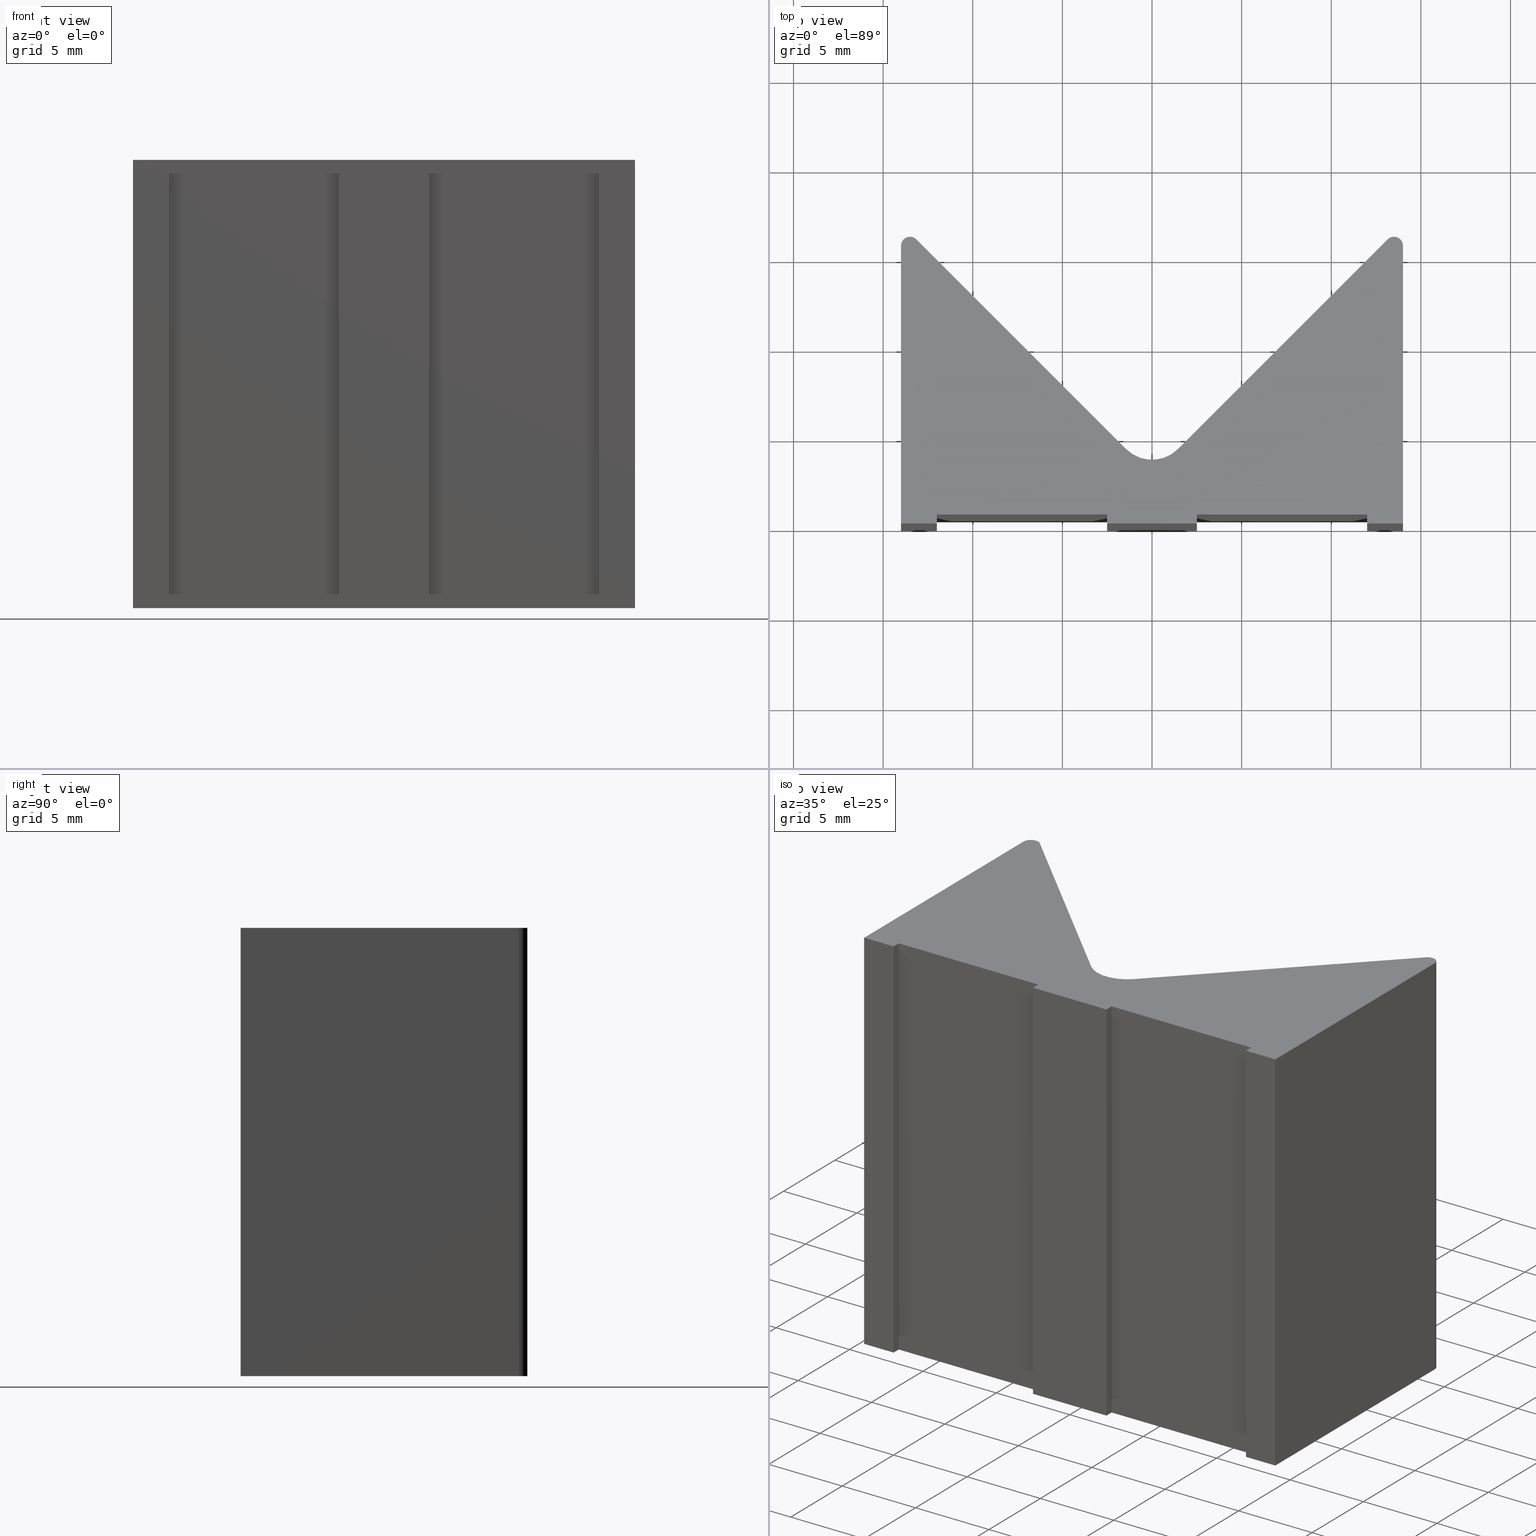
[diagram: canonical four-view strip — front | top / right | iso, engineering-drawing reading convention]
A machine part, canonical four-view strip (front | top / right | iso — engineering-drawing reading convention). The complete STEP part file that produces these views, byte-faithful:
ISO-10303-21;
HEADER;
/* Generated by software containing ST-Developer
 * from STEP Tools, Inc. (www.steptools.com) 
 */

FILE_DESCRIPTION(
/* description */ (''),
/* implementation_level */ '2;1');

FILE_NAME(
/* name */ 'E_3_01_10_18_00_WKZ-0133.stp',
/* time_stamp */ '2025-11-24T11:50:12+01:00',
/* author */ ('d.fischer'),
/* organization */ (''),
/* preprocessor_version */ 'ST-DEVELOPER v20',
/* originating_system */ 'Autodesk Inventor 2025',
/* authorisation */ '');

FILE_SCHEMA (('AUTOMOTIVE_DESIGN { 1 0 10303 214 3 1 1 }'));
ENDSEC;

DATA;
#10=MECHANICAL_DESIGN_GEOMETRIC_PRESENTATION_REPRESENTATION('',(#13),#594);
#11=SHAPE_REPRESENTATION_RELATIONSHIP('SRR','None',#601,#12);
#12=ADVANCED_BREP_SHAPE_REPRESENTATION('',(#14),#593);
#13=STYLED_ITEM('',(#610),#14);
#14=MANIFOLD_SOLID_BREP('Volumenk\X\F6rper1',#353);
#15=CYLINDRICAL_SURFACE('',#389,0.500000000000004);
#16=CYLINDRICAL_SURFACE('',#392,2.04558441227157);
#17=CYLINDRICAL_SURFACE('',#395,0.500000000000003);
#18=FACE_OUTER_BOUND('',#36,.T.);
#19=FACE_OUTER_BOUND('',#37,.T.);
#20=FACE_OUTER_BOUND('',#38,.T.);
#21=FACE_OUTER_BOUND('',#39,.T.);
#22=FACE_OUTER_BOUND('',#40,.T.);
#23=FACE_OUTER_BOUND('',#41,.T.);
#24=FACE_OUTER_BOUND('',#42,.T.);
#25=FACE_OUTER_BOUND('',#43,.T.);
#26=FACE_OUTER_BOUND('',#44,.T.);
#27=FACE_OUTER_BOUND('',#45,.T.);
#28=FACE_OUTER_BOUND('',#46,.T.);
#29=FACE_OUTER_BOUND('',#47,.T.);
#30=FACE_OUTER_BOUND('',#48,.T.);
#31=FACE_OUTER_BOUND('',#49,.T.);
#32=FACE_OUTER_BOUND('',#50,.T.);
#33=FACE_OUTER_BOUND('',#51,.T.);
#34=FACE_OUTER_BOUND('',#52,.T.);
#35=FACE_OUTER_BOUND('',#53,.T.);
#36=EDGE_LOOP('',(#224,#225,#226,#227,#228,#229,#230,#231,#232,#233,#234,
#235,#236,#237,#238,#239));
#37=EDGE_LOOP('',(#240,#241,#242,#243));
#38=EDGE_LOOP('',(#244,#245,#246,#247));
#39=EDGE_LOOP('',(#248,#249,#250,#251));
#40=EDGE_LOOP('',(#252,#253,#254,#255));
#41=EDGE_LOOP('',(#256,#257,#258,#259));
#42=EDGE_LOOP('',(#260,#261,#262,#263));
#43=EDGE_LOOP('',(#264,#265,#266,#267));
#44=EDGE_LOOP('',(#268,#269,#270,#271));
#45=EDGE_LOOP('',(#272,#273,#274,#275));
#46=EDGE_LOOP('',(#276,#277,#278,#279));
#47=EDGE_LOOP('',(#280,#281,#282,#283));
#48=EDGE_LOOP('',(#284,#285,#286,#287));
#49=EDGE_LOOP('',(#288,#289,#290,#291));
#50=EDGE_LOOP('',(#292,#293,#294,#295));
#51=EDGE_LOOP('',(#296,#297,#298,#299));
#52=EDGE_LOOP('',(#300,#301,#302,#303));
#53=EDGE_LOOP('',(#304,#305,#306,#307,#308,#309,#310,#311,#312,#313,#314,
#315,#316,#317,#318,#319));
#54=CIRCLE('',#377,0.500000000000004);
#55=CIRCLE('',#378,2.04558441227157);
#56=CIRCLE('',#379,0.500000000000003);
#57=CIRCLE('',#390,0.500000000000004);
#58=CIRCLE('',#393,2.04558441227157);
#59=CIRCLE('',#396,0.500000000000003);
#60=LINE('',#496,#102);
#61=LINE('',#498,#103);
#62=LINE('',#500,#104);
#63=LINE('',#502,#105);
#64=LINE('',#504,#106);
#65=LINE('',#506,#107);
#66=LINE('',#508,#108);
#67=LINE('',#510,#109);
#68=LINE('',#512,#110);
#69=LINE('',#514,#111);
#70=LINE('',#516,#112);
#71=LINE('',#520,#113);
#72=LINE('',#524,#114);
#73=LINE('',#529,#115);
#74=LINE('',#530,#116);
#75=LINE('',#531,#117);
#76=LINE('',#534,#118);
#77=LINE('',#535,#119);
#78=LINE('',#538,#120);
#79=LINE('',#539,#121);
#80=LINE('',#542,#122);
#81=LINE('',#543,#123);
#82=LINE('',#546,#124);
#83=LINE('',#547,#125);
#84=LINE('',#550,#126);
#85=LINE('',#551,#127);
#86=LINE('',#554,#128);
#87=LINE('',#555,#129);
#88=LINE('',#558,#130);
#89=LINE('',#559,#131);
#90=LINE('',#562,#132);
#91=LINE('',#563,#133);
#92=LINE('',#567,#134);
#93=LINE('',#570,#135);
#94=LINE('',#571,#136);
#95=LINE('',#575,#137);
#96=LINE('',#578,#138);
#97=LINE('',#579,#139);
#98=LINE('',#583,#140);
#99=LINE('',#586,#141);
#100=LINE('',#587,#142);
#101=LINE('',#589,#143);
#102=VECTOR('',#404,10.);
#103=VECTOR('',#405,10.);
#104=VECTOR('',#406,10.);
#105=VECTOR('',#407,10.);
#106=VECTOR('',#408,10.);
#107=VECTOR('',#409,10.);
#108=VECTOR('',#410,10.);
#109=VECTOR('',#411,10.);
#110=VECTOR('',#412,10.);
#111=VECTOR('',#413,10.);
#112=VECTOR('',#414,10.);
#113=VECTOR('',#417,10.);
#114=VECTOR('',#420,10.);
#115=VECTOR('',#425,10.);
#116=VECTOR('',#426,10.);
#117=VECTOR('',#427,10.);
#118=VECTOR('',#430,10.);
#119=VECTOR('',#431,10.);
#120=VECTOR('',#434,10.);
#121=VECTOR('',#435,10.);
#122=VECTOR('',#438,10.);
#123=VECTOR('',#439,10.);
#124=VECTOR('',#442,10.);
#125=VECTOR('',#443,10.);
#126=VECTOR('',#446,10.);
#127=VECTOR('',#447,10.);
#128=VECTOR('',#450,10.);
#129=VECTOR('',#451,10.);
#130=VECTOR('',#454,10.);
#131=VECTOR('',#455,10.);
#132=VECTOR('',#458,10.);
#133=VECTOR('',#459,10.);
#134=VECTOR('',#464,10.);
#135=VECTOR('',#467,10.);
#136=VECTOR('',#468,10.);
#137=VECTOR('',#473,10.);
#138=VECTOR('',#476,10.);
#139=VECTOR('',#477,10.);
#140=VECTOR('',#482,10.);
#141=VECTOR('',#485,10.);
#142=VECTOR('',#486,10.);
#143=VECTOR('',#489,10.);
#144=VERTEX_POINT('',#494);
#145=VERTEX_POINT('',#495);
#146=VERTEX_POINT('',#497);
#147=VERTEX_POINT('',#499);
#148=VERTEX_POINT('',#501);
#149=VERTEX_POINT('',#503);
#150=VERTEX_POINT('',#505);
#151=VERTEX_POINT('',#507);
#152=VERTEX_POINT('',#509);
#153=VERTEX_POINT('',#511);
#154=VERTEX_POINT('',#513);
#155=VERTEX_POINT('',#515);
#156=VERTEX_POINT('',#517);
#157=VERTEX_POINT('',#519);
#158=VERTEX_POINT('',#521);
#159=VERTEX_POINT('',#523);
#160=VERTEX_POINT('',#527);
#161=VERTEX_POINT('',#528);
#162=VERTEX_POINT('',#533);
#163=VERTEX_POINT('',#537);
#164=VERTEX_POINT('',#541);
#165=VERTEX_POINT('',#545);
#166=VERTEX_POINT('',#549);
#167=VERTEX_POINT('',#553);
#168=VERTEX_POINT('',#557);
#169=VERTEX_POINT('',#561);
#170=VERTEX_POINT('',#565);
#171=VERTEX_POINT('',#569);
#172=VERTEX_POINT('',#573);
#173=VERTEX_POINT('',#577);
#174=VERTEX_POINT('',#581);
#175=VERTEX_POINT('',#585);
#176=EDGE_CURVE('',#144,#145,#60,.T.);
#177=EDGE_CURVE('',#146,#144,#61,.T.);
#178=EDGE_CURVE('',#147,#146,#62,.T.);
#179=EDGE_CURVE('',#148,#147,#63,.T.);
#180=EDGE_CURVE('',#149,#148,#64,.T.);
#181=EDGE_CURVE('',#150,#149,#65,.T.);
#182=EDGE_CURVE('',#151,#150,#66,.T.);
#183=EDGE_CURVE('',#152,#151,#67,.T.);
#184=EDGE_CURVE('',#153,#152,#68,.T.);
#185=EDGE_CURVE('',#154,#153,#69,.T.);
#186=EDGE_CURVE('',#155,#154,#70,.T.);
#187=EDGE_CURVE('',#156,#155,#54,.T.);
#188=EDGE_CURVE('',#157,#156,#71,.T.);
#189=EDGE_CURVE('',#158,#157,#55,.T.);
#190=EDGE_CURVE('',#159,#158,#72,.T.);
#191=EDGE_CURVE('',#145,#159,#56,.T.);
#192=EDGE_CURVE('',#160,#161,#73,.T.);
#193=EDGE_CURVE('',#161,#147,#74,.T.);
#194=EDGE_CURVE('',#160,#146,#75,.T.);
#195=EDGE_CURVE('',#161,#162,#76,.T.);
#196=EDGE_CURVE('',#162,#148,#77,.T.);
#197=EDGE_CURVE('',#162,#163,#78,.T.);
#198=EDGE_CURVE('',#163,#149,#79,.T.);
#199=EDGE_CURVE('',#163,#164,#80,.T.);
#200=EDGE_CURVE('',#164,#150,#81,.T.);
#201=EDGE_CURVE('',#164,#165,#82,.T.);
#202=EDGE_CURVE('',#165,#151,#83,.T.);
#203=EDGE_CURVE('',#165,#166,#84,.T.);
#204=EDGE_CURVE('',#166,#152,#85,.T.);
#205=EDGE_CURVE('',#166,#167,#86,.T.);
#206=EDGE_CURVE('',#167,#153,#87,.T.);
#207=EDGE_CURVE('',#167,#168,#88,.T.);
#208=EDGE_CURVE('',#168,#154,#89,.T.);
#209=EDGE_CURVE('',#168,#169,#90,.T.);
#210=EDGE_CURVE('',#169,#155,#91,.T.);
#211=EDGE_CURVE('',#169,#170,#57,.T.);
#212=EDGE_CURVE('',#170,#156,#92,.T.);
#213=EDGE_CURVE('',#170,#171,#93,.T.);
#214=EDGE_CURVE('',#171,#157,#94,.T.);
#215=EDGE_CURVE('',#171,#172,#58,.T.);
#216=EDGE_CURVE('',#172,#158,#95,.T.);
#217=EDGE_CURVE('',#172,#173,#96,.T.);
#218=EDGE_CURVE('',#173,#159,#97,.T.);
#219=EDGE_CURVE('',#173,#174,#59,.T.);
#220=EDGE_CURVE('',#174,#145,#98,.T.);
#221=EDGE_CURVE('',#174,#175,#99,.T.);
#222=EDGE_CURVE('',#144,#175,#100,.T.);
#223=EDGE_CURVE('',#175,#160,#101,.T.);
#224=ORIENTED_EDGE('',*,*,#176,.F.);
#225=ORIENTED_EDGE('',*,*,#177,.F.);
#226=ORIENTED_EDGE('',*,*,#178,.F.);
#227=ORIENTED_EDGE('',*,*,#179,.F.);
#228=ORIENTED_EDGE('',*,*,#180,.F.);
#229=ORIENTED_EDGE('',*,*,#181,.F.);
#230=ORIENTED_EDGE('',*,*,#182,.F.);
#231=ORIENTED_EDGE('',*,*,#183,.F.);
#232=ORIENTED_EDGE('',*,*,#184,.F.);
#233=ORIENTED_EDGE('',*,*,#185,.F.);
#234=ORIENTED_EDGE('',*,*,#186,.F.);
#235=ORIENTED_EDGE('',*,*,#187,.F.);
#236=ORIENTED_EDGE('',*,*,#188,.F.);
#237=ORIENTED_EDGE('',*,*,#189,.F.);
#238=ORIENTED_EDGE('',*,*,#190,.F.);
#239=ORIENTED_EDGE('',*,*,#191,.F.);
#240=ORIENTED_EDGE('',*,*,#192,.T.);
#241=ORIENTED_EDGE('',*,*,#193,.T.);
#242=ORIENTED_EDGE('',*,*,#178,.T.);
#243=ORIENTED_EDGE('',*,*,#194,.F.);
#244=ORIENTED_EDGE('',*,*,#195,.T.);
#245=ORIENTED_EDGE('',*,*,#196,.T.);
#246=ORIENTED_EDGE('',*,*,#179,.T.);
#247=ORIENTED_EDGE('',*,*,#193,.F.);
#248=ORIENTED_EDGE('',*,*,#197,.T.);
#249=ORIENTED_EDGE('',*,*,#198,.T.);
#250=ORIENTED_EDGE('',*,*,#180,.T.);
#251=ORIENTED_EDGE('',*,*,#196,.F.);
#252=ORIENTED_EDGE('',*,*,#199,.T.);
#253=ORIENTED_EDGE('',*,*,#200,.T.);
#254=ORIENTED_EDGE('',*,*,#181,.T.);
#255=ORIENTED_EDGE('',*,*,#198,.F.);
#256=ORIENTED_EDGE('',*,*,#201,.T.);
#257=ORIENTED_EDGE('',*,*,#202,.T.);
#258=ORIENTED_EDGE('',*,*,#182,.T.);
#259=ORIENTED_EDGE('',*,*,#200,.F.);
#260=ORIENTED_EDGE('',*,*,#203,.T.);
#261=ORIENTED_EDGE('',*,*,#204,.T.);
#262=ORIENTED_EDGE('',*,*,#183,.T.);
#263=ORIENTED_EDGE('',*,*,#202,.F.);
#264=ORIENTED_EDGE('',*,*,#205,.T.);
#265=ORIENTED_EDGE('',*,*,#206,.T.);
#266=ORIENTED_EDGE('',*,*,#184,.T.);
#267=ORIENTED_EDGE('',*,*,#204,.F.);
#268=ORIENTED_EDGE('',*,*,#207,.T.);
#269=ORIENTED_EDGE('',*,*,#208,.T.);
#270=ORIENTED_EDGE('',*,*,#185,.T.);
#271=ORIENTED_EDGE('',*,*,#206,.F.);
#272=ORIENTED_EDGE('',*,*,#209,.T.);
#273=ORIENTED_EDGE('',*,*,#210,.T.);
#274=ORIENTED_EDGE('',*,*,#186,.T.);
#275=ORIENTED_EDGE('',*,*,#208,.F.);
#276=ORIENTED_EDGE('',*,*,#211,.T.);
#277=ORIENTED_EDGE('',*,*,#212,.T.);
#278=ORIENTED_EDGE('',*,*,#187,.T.);
#279=ORIENTED_EDGE('',*,*,#210,.F.);
#280=ORIENTED_EDGE('',*,*,#213,.T.);
#281=ORIENTED_EDGE('',*,*,#214,.T.);
#282=ORIENTED_EDGE('',*,*,#188,.T.);
#283=ORIENTED_EDGE('',*,*,#212,.F.);
#284=ORIENTED_EDGE('',*,*,#215,.T.);
#285=ORIENTED_EDGE('',*,*,#216,.T.);
#286=ORIENTED_EDGE('',*,*,#189,.T.);
#287=ORIENTED_EDGE('',*,*,#214,.F.);
#288=ORIENTED_EDGE('',*,*,#217,.T.);
#289=ORIENTED_EDGE('',*,*,#218,.T.);
#290=ORIENTED_EDGE('',*,*,#190,.T.);
#291=ORIENTED_EDGE('',*,*,#216,.F.);
#292=ORIENTED_EDGE('',*,*,#219,.T.);
#293=ORIENTED_EDGE('',*,*,#220,.T.);
#294=ORIENTED_EDGE('',*,*,#191,.T.);
#295=ORIENTED_EDGE('',*,*,#218,.F.);
#296=ORIENTED_EDGE('',*,*,#221,.T.);
#297=ORIENTED_EDGE('',*,*,#222,.F.);
#298=ORIENTED_EDGE('',*,*,#176,.T.);
#299=ORIENTED_EDGE('',*,*,#220,.F.);
#300=ORIENTED_EDGE('',*,*,#223,.T.);
#301=ORIENTED_EDGE('',*,*,#194,.T.);
#302=ORIENTED_EDGE('',*,*,#177,.T.);
#303=ORIENTED_EDGE('',*,*,#222,.T.);
#304=ORIENTED_EDGE('',*,*,#192,.F.);
#305=ORIENTED_EDGE('',*,*,#223,.F.);
#306=ORIENTED_EDGE('',*,*,#221,.F.);
#307=ORIENTED_EDGE('',*,*,#219,.F.);
#308=ORIENTED_EDGE('',*,*,#217,.F.);
#309=ORIENTED_EDGE('',*,*,#215,.F.);
#310=ORIENTED_EDGE('',*,*,#213,.F.);
#311=ORIENTED_EDGE('',*,*,#211,.F.);
#312=ORIENTED_EDGE('',*,*,#209,.F.);
#313=ORIENTED_EDGE('',*,*,#207,.F.);
#314=ORIENTED_EDGE('',*,*,#205,.F.);
#315=ORIENTED_EDGE('',*,*,#203,.F.);
#316=ORIENTED_EDGE('',*,*,#201,.F.);
#317=ORIENTED_EDGE('',*,*,#199,.F.);
#318=ORIENTED_EDGE('',*,*,#197,.F.);
#319=ORIENTED_EDGE('',*,*,#195,.F.);
#320=PLANE('',#376);
#321=PLANE('',#380);
#322=PLANE('',#381);
#323=PLANE('',#382);
#324=PLANE('',#383);
#325=PLANE('',#384);
#326=PLANE('',#385);
#327=PLANE('',#386);
#328=PLANE('',#387);
#329=PLANE('',#388);
#330=PLANE('',#391);
#331=PLANE('',#394);
#332=PLANE('',#397);
#333=PLANE('',#398);
#334=PLANE('',#399);
#335=ADVANCED_FACE('',(#18),#320,.F.);
#336=ADVANCED_FACE('',(#19),#321,.T.);
#337=ADVANCED_FACE('',(#20),#322,.T.);
#338=ADVANCED_FACE('',(#21),#323,.T.);
#339=ADVANCED_FACE('',(#22),#324,.T.);
#340=ADVANCED_FACE('',(#23),#325,.T.);
#341=ADVANCED_FACE('',(#24),#326,.T.);
#342=ADVANCED_FACE('',(#25),#327,.T.);
#343=ADVANCED_FACE('',(#26),#328,.T.);
#344=ADVANCED_FACE('',(#27),#329,.T.);
#345=ADVANCED_FACE('',(#28),#15,.T.);
#346=ADVANCED_FACE('',(#29),#330,.T.);
#347=ADVANCED_FACE('',(#30),#16,.F.);
#348=ADVANCED_FACE('',(#31),#331,.T.);
#349=ADVANCED_FACE('',(#32),#17,.T.);
#350=ADVANCED_FACE('',(#33),#332,.T.);
#351=ADVANCED_FACE('',(#34),#333,.T.);
#352=ADVANCED_FACE('',(#35),#334,.T.);
#353=CLOSED_SHELL('',(#335,#336,#337,#338,#339,#340,#341,#342,#343,#344,
#345,#346,#347,#348,#349,#350,#351,#352));
#354=DERIVED_UNIT_ELEMENT(#357,1.);
#355=DERIVED_UNIT_ELEMENT(#596,-3.);
#356=DIMENSIONAL_EXPONENTS(0.,1.,0.,0.,0.,0.,0.);
#357=(
CONVERSION_BASED_UNIT('gram',#359)
MASS_UNIT()
NAMED_UNIT(#356)
);
#358=(
MASS_UNIT()
NAMED_UNIT(*)
SI_UNIT(.KILO.,.GRAM.)
);
#359=MASS_MEASURE_WITH_UNIT(MASS_MEASURE(0.001),#358);
#360=DERIVED_UNIT((#354,#355));
#361=MEASURE_REPRESENTATION_ITEM('density measure',
POSITIVE_RATIO_MEASURE(8.03),#360);
#362=PROPERTY_DEFINITION_REPRESENTATION(#367,#364);
#363=PROPERTY_DEFINITION_REPRESENTATION(#368,#365);
#364=REPRESENTATION('material name',(#366),#593);
#365=REPRESENTATION('density',(#361),#593);
#366=DESCRIPTIVE_REPRESENTATION_ITEM('1.4301','1.4301');
#367=PROPERTY_DEFINITION('material property','material name',#603);
#368=PROPERTY_DEFINITION('material property','density of part',#603);
#369=DATE_TIME_ROLE('creation_date');
#370=APPLIED_DATE_AND_TIME_ASSIGNMENT(#371,#369,(#603));
#371=DATE_AND_TIME(#372,#373);
#372=CALENDAR_DATE(2011,18,10);
#373=LOCAL_TIME(0,0,0.,#374);
#374=COORDINATED_UNIVERSAL_TIME_OFFSET(0,0,.BEHIND.);
#375=AXIS2_PLACEMENT_3D('',#492,#400,#401);
#376=AXIS2_PLACEMENT_3D('',#493,#402,#403);
#377=AXIS2_PLACEMENT_3D('',#518,#415,#416);
#378=AXIS2_PLACEMENT_3D('',#522,#418,#419);
#379=AXIS2_PLACEMENT_3D('',#525,#421,#422);
#380=AXIS2_PLACEMENT_3D('',#526,#423,#424);
#381=AXIS2_PLACEMENT_3D('',#532,#428,#429);
#382=AXIS2_PLACEMENT_3D('',#536,#432,#433);
#383=AXIS2_PLACEMENT_3D('',#540,#436,#437);
#384=AXIS2_PLACEMENT_3D('',#544,#440,#441);
#385=AXIS2_PLACEMENT_3D('',#548,#444,#445);
#386=AXIS2_PLACEMENT_3D('',#552,#448,#449);
#387=AXIS2_PLACEMENT_3D('',#556,#452,#453);
#388=AXIS2_PLACEMENT_3D('',#560,#456,#457);
#389=AXIS2_PLACEMENT_3D('',#564,#460,#461);
#390=AXIS2_PLACEMENT_3D('',#566,#462,#463);
#391=AXIS2_PLACEMENT_3D('',#568,#465,#466);
#392=AXIS2_PLACEMENT_3D('',#572,#469,#470);
#393=AXIS2_PLACEMENT_3D('',#574,#471,#472);
#394=AXIS2_PLACEMENT_3D('',#576,#474,#475);
#395=AXIS2_PLACEMENT_3D('',#580,#478,#479);
#396=AXIS2_PLACEMENT_3D('',#582,#480,#481);
#397=AXIS2_PLACEMENT_3D('',#584,#483,#484);
#398=AXIS2_PLACEMENT_3D('',#588,#487,#488);
#399=AXIS2_PLACEMENT_3D('',#590,#490,#491);
#400=DIRECTION('axis',(0.,0.,1.));
#401=DIRECTION('refdir',(1.,0.,0.));
#402=DIRECTION('center_axis',(0.,0.,1.));
#403=DIRECTION('ref_axis',(1.,0.,0.));
#404=DIRECTION('',(2.86509167645202E-16,1.,0.));
#405=DIRECTION('',(1.,0.,0.));
#406=DIRECTION('',(0.,-1.,0.));
#407=DIRECTION('',(1.,-9.49532850008358E-17,0.));
#408=DIRECTION('',(0.,1.,0.));
#409=DIRECTION('',(1.,0.,0.));
#410=DIRECTION('',(0.,-1.,0.));
#411=DIRECTION('',(1.,9.49532850008358E-17,0.));
#412=DIRECTION('',(0.,1.,0.));
#413=DIRECTION('',(1.,0.,0.));
#414=DIRECTION('',(2.86509167645202E-16,-1.,0.));
#415=DIRECTION('center_axis',(0.,0.,1.));
#416=DIRECTION('ref_axis',(-0.707106781186547,-0.707106781186547,0.));
#417=DIRECTION('',(-0.707106781186548,0.707106781186547,0.));
#418=DIRECTION('center_axis',(0.,0.,-1.));
#419=DIRECTION('ref_axis',(-0.707106781186547,-0.707106781186548,0.));
#420=DIRECTION('',(-0.707106781186548,-0.707106781186547,0.));
#421=DIRECTION('center_axis',(0.,0.,1.));
#422=DIRECTION('ref_axis',(-1.,0.,0.));
#423=DIRECTION('center_axis',(-1.,0.,0.));
#424=DIRECTION('ref_axis',(0.,0.,1.));
#425=DIRECTION('',(0.,1.,0.));
#426=DIRECTION('',(0.,0.,-1.));
#427=DIRECTION('',(0.,0.,-1.));
#428=DIRECTION('center_axis',(-9.49532850008358E-17,-1.,0.));
#429=DIRECTION('ref_axis',(0.,0.,-1.));
#430=DIRECTION('',(-1.,9.49532850008358E-17,0.));
#431=DIRECTION('',(0.,0.,-1.));
#432=DIRECTION('center_axis',(1.,0.,0.));
#433=DIRECTION('ref_axis',(0.,0.,-1.));
#434=DIRECTION('',(0.,-1.,0.));
#435=DIRECTION('',(0.,0.,-1.));
#436=DIRECTION('center_axis',(0.,-1.,0.));
#437=DIRECTION('ref_axis',(0.,0.,-1.));
#438=DIRECTION('',(-1.,0.,0.));
#439=DIRECTION('',(0.,0.,-1.));
#440=DIRECTION('center_axis',(-1.,0.,0.));
#441=DIRECTION('ref_axis',(0.,0.,1.));
#442=DIRECTION('',(0.,1.,0.));
#443=DIRECTION('',(0.,0.,-1.));
#444=DIRECTION('center_axis',(9.49532850008358E-17,-1.,0.));
#445=DIRECTION('ref_axis',(0.,0.,-1.));
#446=DIRECTION('',(-1.,-9.49532850008358E-17,0.));
#447=DIRECTION('',(0.,0.,-1.));
#448=DIRECTION('center_axis',(1.,0.,0.));
#449=DIRECTION('ref_axis',(0.,0.,-1.));
#450=DIRECTION('',(0.,-1.,0.));
#451=DIRECTION('',(0.,0.,-1.));
#452=DIRECTION('center_axis',(0.,-1.,0.));
#453=DIRECTION('ref_axis',(0.,0.,-1.));
#454=DIRECTION('',(-1.,0.,0.));
#455=DIRECTION('',(0.,0.,-1.));
#456=DIRECTION('center_axis',(-1.,-2.86509167645202E-16,0.));
#457=DIRECTION('ref_axis',(0.,0.,1.));
#458=DIRECTION('',(-2.86509167645202E-16,1.,0.));
#459=DIRECTION('',(0.,0.,-1.));
#460=DIRECTION('center_axis',(0.,0.,1.));
#461=DIRECTION('ref_axis',(-0.707106781186547,-0.707106781186547,0.));
#462=DIRECTION('center_axis',(0.,0.,-1.));
#463=DIRECTION('ref_axis',(-0.707106781186547,-0.707106781186547,0.));
#464=DIRECTION('',(0.,0.,-1.));
#465=DIRECTION('center_axis',(0.707106781186547,0.707106781186548,0.));
#466=DIRECTION('ref_axis',(0.,0.,-1.));
#467=DIRECTION('',(0.707106781186548,-0.707106781186547,0.));
#468=DIRECTION('',(0.,0.,-1.));
#469=DIRECTION('center_axis',(0.,0.,1.));
#470=DIRECTION('ref_axis',(-0.707106781186547,-0.707106781186548,0.));
#471=DIRECTION('center_axis',(0.,0.,1.));
#472=DIRECTION('ref_axis',(-0.707106781186547,-0.707106781186548,0.));
#473=DIRECTION('',(0.,0.,-1.));
#474=DIRECTION('center_axis',(-0.707106781186547,0.707106781186548,0.));
#475=DIRECTION('ref_axis',(0.,0.,1.));
#476=DIRECTION('',(0.707106781186548,0.707106781186547,0.));
#477=DIRECTION('',(0.,0.,-1.));
#478=DIRECTION('center_axis',(0.,0.,1.));
#479=DIRECTION('ref_axis',(-1.,0.,0.));
#480=DIRECTION('center_axis',(0.,0.,-1.));
#481=DIRECTION('ref_axis',(-1.,0.,0.));
#482=DIRECTION('',(0.,0.,-1.));
#483=DIRECTION('center_axis',(1.,-2.86509167645202E-16,0.));
#484=DIRECTION('ref_axis',(0.,0.,-1.));
#485=DIRECTION('',(-2.86509167645202E-16,-1.,0.));
#486=DIRECTION('',(0.,0.,1.));
#487=DIRECTION('center_axis',(0.,-1.,0.));
#488=DIRECTION('ref_axis',(0.,0.,-1.));
#489=DIRECTION('',(-1.,0.,0.));
#490=DIRECTION('center_axis',(0.,0.,1.));
#491=DIRECTION('ref_axis',(1.,0.,0.));
#492=CARTESIAN_POINT('',(0.,0.,0.));
#493=CARTESIAN_POINT('Origin',(-2.77555756156289E-16,6.32967069798019,-12.5));
#494=CARTESIAN_POINT('',(14.,0.,-12.5));
#495=CARTESIAN_POINT('',(14.,15.5,-12.5));
#496=CARTESIAN_POINT('',(14.,15.5,-12.5));
#497=CARTESIAN_POINT('',(12.,0.,-12.5));
#498=CARTESIAN_POINT('',(14.,0.,-12.5));
#499=CARTESIAN_POINT('',(12.,0.5,-12.5));
#500=CARTESIAN_POINT('',(12.,0.,-12.5));
#501=CARTESIAN_POINT('',(2.5,0.500000000000001,-12.5));
#502=CARTESIAN_POINT('',(12.,0.5,-12.5));
#503=CARTESIAN_POINT('',(2.5,0.,-12.5));
#504=CARTESIAN_POINT('',(2.5,0.500000000000001,-12.5));
#505=CARTESIAN_POINT('',(-2.5,0.,-12.5));
#506=CARTESIAN_POINT('',(2.5,0.,-12.5));
#507=CARTESIAN_POINT('',(-2.5,0.500000000000001,-12.5));
#508=CARTESIAN_POINT('',(-2.5,0.,-12.5));
#509=CARTESIAN_POINT('',(-12.,0.5,-12.5));
#510=CARTESIAN_POINT('',(-2.5,0.500000000000001,-12.5));
#511=CARTESIAN_POINT('',(-12.,0.,-12.5));
#512=CARTESIAN_POINT('',(-12.,0.5,-12.5));
#513=CARTESIAN_POINT('',(-14.,0.,-12.5));
#514=CARTESIAN_POINT('',(-12.,0.,-12.5));
#515=CARTESIAN_POINT('',(-14.,15.5,-12.5));
#516=CARTESIAN_POINT('',(-14.,0.,-12.5));
#517=CARTESIAN_POINT('',(-13.1464466094067,15.8535533905933,-12.5));
#518=CARTESIAN_POINT('Origin',(-13.5,15.5,-12.5));
#519=CARTESIAN_POINT('',(-1.44644660940672,4.15355339059328,-12.5));
#520=CARTESIAN_POINT('',(-13.1464466094067,15.8535533905933,-12.5));
#521=CARTESIAN_POINT('',(1.44644660940672,4.15355339059328,-12.5));
#522=CARTESIAN_POINT('Origin',(0.,5.6,-12.5));
#523=CARTESIAN_POINT('',(13.1464466094067,15.8535533905933,-12.5));
#524=CARTESIAN_POINT('',(1.44644660940672,4.15355339059328,-12.5));
#525=CARTESIAN_POINT('Origin',(13.5,15.5,-12.5));
#526=CARTESIAN_POINT('Origin',(12.,0.,0.));
#527=CARTESIAN_POINT('',(12.,0.,12.5));
#528=CARTESIAN_POINT('',(12.,0.5,12.5));
#529=CARTESIAN_POINT('',(12.,0.,12.5));
#530=CARTESIAN_POINT('',(12.,0.5,0.));
#531=CARTESIAN_POINT('',(12.,0.,0.));
#532=CARTESIAN_POINT('Origin',(12.,0.5,0.));
#533=CARTESIAN_POINT('',(2.5,0.500000000000001,12.5));
#534=CARTESIAN_POINT('',(12.,0.5,12.5));
#535=CARTESIAN_POINT('',(2.5,0.500000000000001,0.));
#536=CARTESIAN_POINT('Origin',(2.5,0.500000000000001,0.));
#537=CARTESIAN_POINT('',(2.5,0.,12.5));
#538=CARTESIAN_POINT('',(2.5,0.500000000000001,12.5));
#539=CARTESIAN_POINT('',(2.5,0.,0.));
#540=CARTESIAN_POINT('Origin',(2.5,0.,0.));
#541=CARTESIAN_POINT('',(-2.5,0.,12.5));
#542=CARTESIAN_POINT('',(2.5,0.,12.5));
#543=CARTESIAN_POINT('',(-2.5,0.,0.));
#544=CARTESIAN_POINT('Origin',(-2.5,0.,0.));
#545=CARTESIAN_POINT('',(-2.5,0.500000000000001,12.5));
#546=CARTESIAN_POINT('',(-2.5,0.,12.5));
#547=CARTESIAN_POINT('',(-2.5,0.500000000000001,0.));
#548=CARTESIAN_POINT('Origin',(-2.5,0.500000000000001,0.));
#549=CARTESIAN_POINT('',(-12.,0.5,12.5));
#550=CARTESIAN_POINT('',(-2.5,0.500000000000001,12.5));
#551=CARTESIAN_POINT('',(-12.,0.5,0.));
#552=CARTESIAN_POINT('Origin',(-12.,0.5,0.));
#553=CARTESIAN_POINT('',(-12.,0.,12.5));
#554=CARTESIAN_POINT('',(-12.,0.5,12.5));
#555=CARTESIAN_POINT('',(-12.,0.,0.));
#556=CARTESIAN_POINT('Origin',(-12.,0.,0.));
#557=CARTESIAN_POINT('',(-14.,0.,12.5));
#558=CARTESIAN_POINT('',(-12.,0.,12.5));
#559=CARTESIAN_POINT('',(-14.,0.,0.));
#560=CARTESIAN_POINT('Origin',(-14.,0.,0.));
#561=CARTESIAN_POINT('',(-14.,15.5,12.5));
#562=CARTESIAN_POINT('',(-14.,0.,12.5));
#563=CARTESIAN_POINT('',(-14.,15.5,0.));
#564=CARTESIAN_POINT('Origin',(-13.5,15.5,0.));
#565=CARTESIAN_POINT('',(-13.1464466094067,15.8535533905933,12.5));
#566=CARTESIAN_POINT('Origin',(-13.5,15.5,12.5));
#567=CARTESIAN_POINT('',(-13.1464466094067,15.8535533905933,0.));
#568=CARTESIAN_POINT('Origin',(-13.1464466094067,15.8535533905933,0.));
#569=CARTESIAN_POINT('',(-1.44644660940672,4.15355339059328,12.5));
#570=CARTESIAN_POINT('',(-13.1464466094067,15.8535533905933,12.5));
#571=CARTESIAN_POINT('',(-1.44644660940672,4.15355339059328,0.));
#572=CARTESIAN_POINT('Origin',(0.,5.6,0.));
#573=CARTESIAN_POINT('',(1.44644660940672,4.15355339059328,12.5));
#574=CARTESIAN_POINT('Origin',(0.,5.6,12.5));
#575=CARTESIAN_POINT('',(1.44644660940672,4.15355339059328,0.));
#576=CARTESIAN_POINT('Origin',(1.44644660940672,4.15355339059328,0.));
#577=CARTESIAN_POINT('',(13.1464466094067,15.8535533905933,12.5));
#578=CARTESIAN_POINT('',(1.44644660940672,4.15355339059328,12.5));
#579=CARTESIAN_POINT('',(13.1464466094067,15.8535533905933,0.));
#580=CARTESIAN_POINT('Origin',(13.5,15.5,0.));
#581=CARTESIAN_POINT('',(14.,15.5,12.5));
#582=CARTESIAN_POINT('Origin',(13.5,15.5,12.5));
#583=CARTESIAN_POINT('',(14.,15.5,0.));
#584=CARTESIAN_POINT('Origin',(14.,15.5,0.));
#585=CARTESIAN_POINT('',(14.,0.,12.5));
#586=CARTESIAN_POINT('',(14.,15.5,12.5));
#587=CARTESIAN_POINT('',(14.,0.,0.));
#588=CARTESIAN_POINT('Origin',(14.,0.,0.));
#589=CARTESIAN_POINT('',(14.,0.,12.5));
#590=CARTESIAN_POINT('Origin',(-1.04083408558608E-16,6.32967069798019,12.5));
#591=UNCERTAINTY_MEASURE_WITH_UNIT(LENGTH_MEASURE(0.01),#595,
'DISTANCE_ACCURACY_VALUE',
'Maximum model space distance between geometric entities at asserted c
onnectivities');
#592=UNCERTAINTY_MEASURE_WITH_UNIT(LENGTH_MEASURE(0.01),#595,
'DISTANCE_ACCURACY_VALUE',
'Maximum model space distance between geometric entities at asserted c
onnectivities');
#593=(
GEOMETRIC_REPRESENTATION_CONTEXT(3)
GLOBAL_UNCERTAINTY_ASSIGNED_CONTEXT((#591))
GLOBAL_UNIT_ASSIGNED_CONTEXT((#595,#597,#598))
REPRESENTATION_CONTEXT('','3D')
);
#594=(
GEOMETRIC_REPRESENTATION_CONTEXT(3)
GLOBAL_UNCERTAINTY_ASSIGNED_CONTEXT((#592))
GLOBAL_UNIT_ASSIGNED_CONTEXT((#595,#597,#598))
REPRESENTATION_CONTEXT('','3D')
);
#595=(
LENGTH_UNIT()
NAMED_UNIT(*)
SI_UNIT(.MILLI.,.METRE.)
);
#596=(
LENGTH_UNIT()
NAMED_UNIT(*)
SI_UNIT(.CENTI.,.METRE.)
);
#597=(
NAMED_UNIT(*)
PLANE_ANGLE_UNIT()
SI_UNIT($,.RADIAN.)
);
#598=(
NAMED_UNIT(*)
SI_UNIT($,.STERADIAN.)
SOLID_ANGLE_UNIT()
);
#599=SHAPE_DEFINITION_REPRESENTATION(#600,#601);
#600=PRODUCT_DEFINITION_SHAPE('',$,#603);
#601=SHAPE_REPRESENTATION('',(#375),#593);
#602=PRODUCT_DEFINITION_CONTEXT('part definition',#607,'design');
#603=PRODUCT_DEFINITION('WKZ-0133','E_3_01_10_18_00_WKZ-0133',#604,#602);
#604=PRODUCT_DEFINITION_FORMATION('',$,#609);
#605=PRODUCT_RELATED_PRODUCT_CATEGORY('E_3_01_10_18_00_WKZ-0133',
'E_3_01_10_18_00_WKZ-0133',(#609));
#606=APPLICATION_PROTOCOL_DEFINITION('international standard',
'automotive_design',2009,#607);
#607=APPLICATION_CONTEXT(
'Core Data for Automotive Mechanical Design Process');
#608=PRODUCT_CONTEXT('part definition',#607,'mechanical');
#609=PRODUCT('WKZ-0133','E_3_01_10_18_00_WKZ-0133',$,(#608));
#610=PRESENTATION_STYLE_ASSIGNMENT((#611));
#611=SURFACE_STYLE_USAGE(.BOTH.,#614);
#612=SURFACE_STYLE_RENDERING_WITH_PROPERTIES($,#618,(#613));
#613=SURFACE_STYLE_TRANSPARENT(0.);
#614=SURFACE_SIDE_STYLE('',(#615,#612));
#615=SURFACE_STYLE_FILL_AREA(#616);
#616=FILL_AREA_STYLE('',(#617));
#617=FILL_AREA_STYLE_COLOUR('',#618);
#618=COLOUR_RGB('',0.92156862745098,0.92156862745098,0.92156862745098);
ENDSEC;
END-ISO-10303-21;
